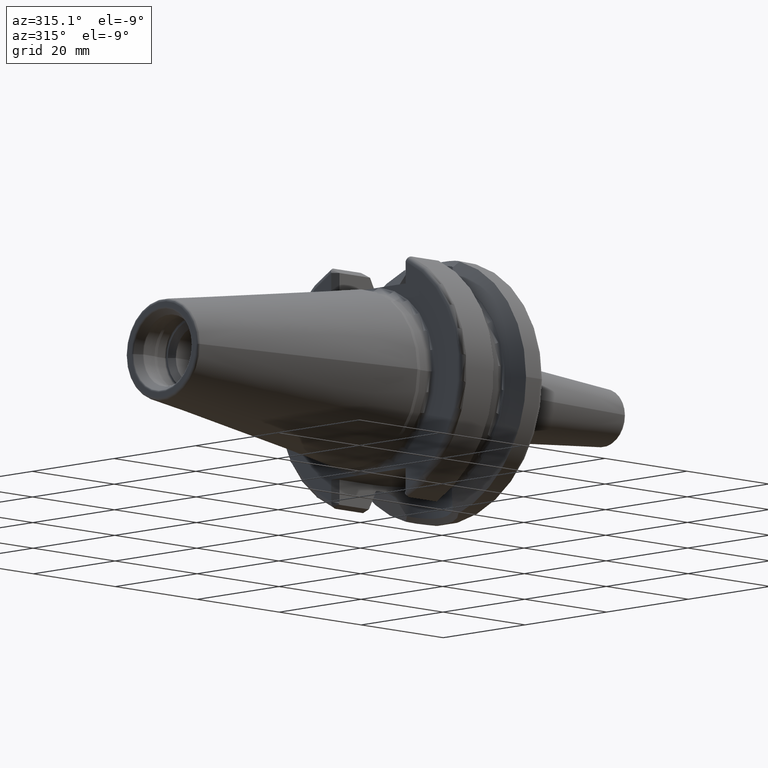
[diagram: clean part render]
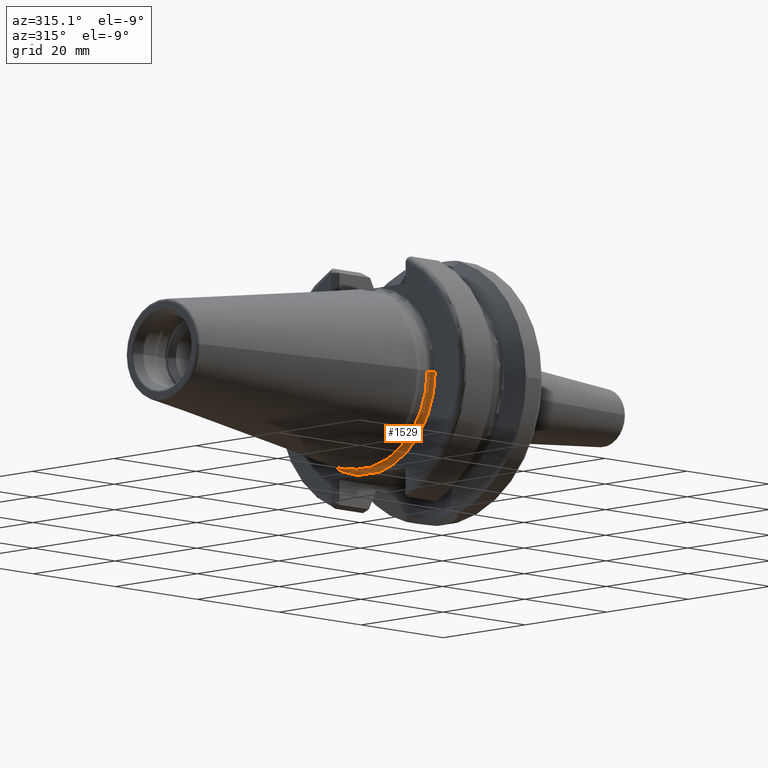
[diagram: same view with one face highlighted and labeled with its STEP entity id]
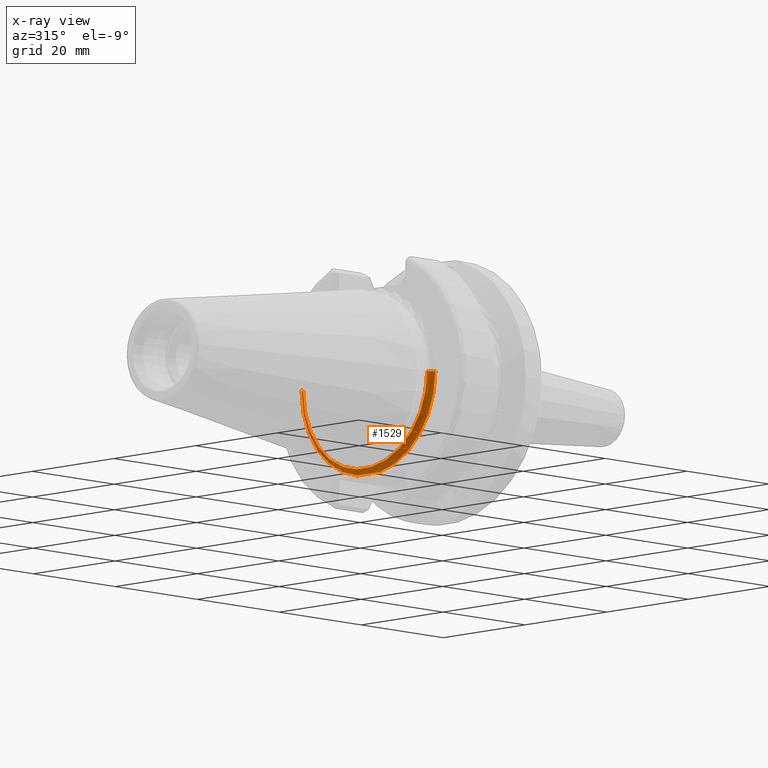
[diagram: x-ray of the same camera — body ghosted, the highlighted face saturated]
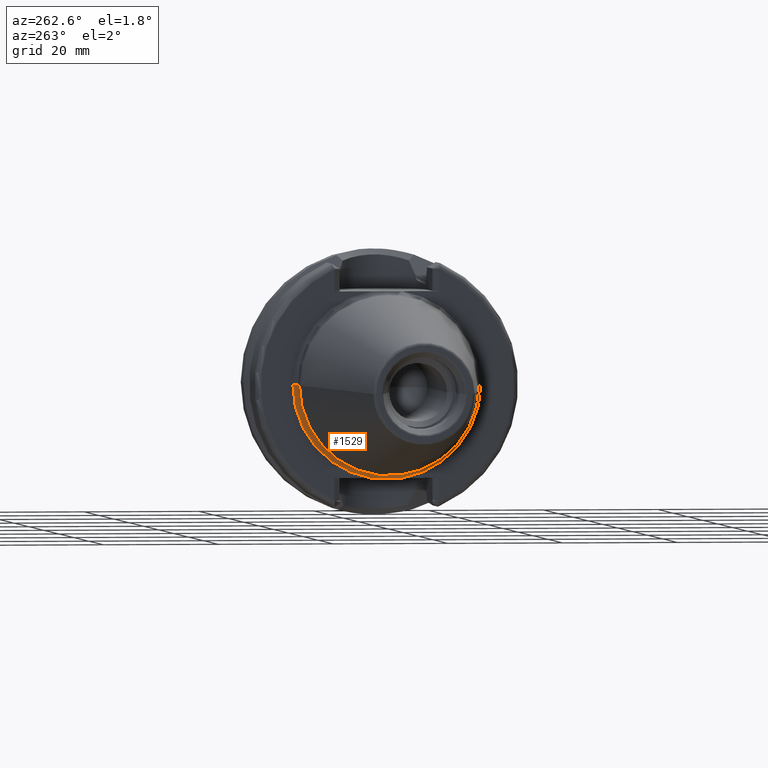
[diagram: same view with one face highlighted and labeled with its STEP entity id]
A machine part, auxiliary view. The second image highlights one B-rep face of the part: STEP entity #1529.
The next image is the same camera in x-ray: the body ghosted, the highlighted face saturated — about 12% of this face is hidden behind the body in this view.
A second angle (auxiliary view) of the same face is appended — the face is thin or edge-on in the first view.
In plain terms, the highlighted toroidal blend (fillet) surface has major radius 16.375 mm and minor (blend) radius 1 mm.
Its self-contained STEP definition (entity closure, byte-faithful):
#91=CARTESIAN_POINT('',(1.E0,0.E0,0.E0));
#92=DIRECTION('',(-1.E0,0.E0,0.E0));
#93=DIRECTION('',(0.E0,1.E0,0.E0));
#94=AXIS2_PLACEMENT_3D('',#91,#92,#93);
#96=CARTESIAN_POINT('',(2.E0,0.E0,0.E0));
#97=DIRECTION('',(-1.E0,0.E0,0.E0));
#98=DIRECTION('',(0.E0,1.E0,0.E0));
#99=AXIS2_PLACEMENT_3D('',#96,#97,#98);
#101=CARTESIAN_POINT('',(1.E0,1.6375E1,0.E0));
#102=DIRECTION('',(0.E0,0.E0,-1.E0));
#103=DIRECTION('',(1.E0,0.E0,0.E0));
#104=AXIS2_PLACEMENT_3D('',#101,#102,#103);
#106=CARTESIAN_POINT('',(1.E0,-1.6375E1,0.E0));
#107=DIRECTION('',(0.E0,0.E0,1.E0));
#108=DIRECTION('',(1.E0,0.E0,0.E0));
#109=AXIS2_PLACEMENT_3D('',#106,#107,#108);
#111=CARTESIAN_POINT('',(2.E0,0.E0,0.E0));
#112=DIRECTION('',(-1.E0,0.E0,0.E0));
#113=DIRECTION('',(0.E0,-1.652032561545E-1,-9.862595419847E-1));
#114=AXIS2_PLACEMENT_3D('',#111,#112,#113);
#116=CARTESIAN_POINT('',(2.E0,2.705203319531E0,-1.615E1));
#117=CARTESIAN_POINT('',(2.E0,2.447526606662E0,-1.615E1));
#118=CARTESIAN_POINT('',(1.994666808081E0,1.932209003313E0,-1.615E1));
#119=CARTESIAN_POINT('',(1.982373677754E0,1.159353659255E0,-1.615E1));
#120=CARTESIAN_POINT('',(1.974023153497E0,3.864772815515E-1,-1.615E1));
#121=CARTESIAN_POINT('',(1.974022947075E0,-3.864455621442E-1,-1.615E1));
#122=CARTESIAN_POINT('',(1.982373315248E0,-1.159330607093E0,-1.615E1));
#123=CARTESIAN_POINT('',(1.994666672291E0,-1.932198796155E0,-1.615E1));
#124=CARTESIAN_POINT('',(2.E0,-2.447523240675E0,-1.615E1));
#125=CARTESIAN_POINT('',(2.E0,-2.705203319531E0,-1.615E1));
#1210=CARTESIAN_POINT('',(2.E0,1.6375E1,0.E0));
#1211=CARTESIAN_POINT('',(1.E0,1.5375E1,0.E0));
#1212=VERTEX_POINT('',#1210);
#1213=VERTEX_POINT('',#1211);
#1216=CARTESIAN_POINT('',(2.E0,-1.6375E1,0.E0));
#1217=CARTESIAN_POINT('',(1.E0,-1.5375E1,0.E0));
#1218=VERTEX_POINT('',#1216);
#1219=VERTEX_POINT('',#1217);
#1288=CARTESIAN_POINT('',(2.E0,2.705203319531E0,-1.615E1));
#1289=VERTEX_POINT('',#1288);
#1290=CARTESIAN_POINT('',(2.E0,-2.705203319531E0,-1.615E1));
#1291=VERTEX_POINT('',#1290);
#1511=CARTESIAN_POINT('',(1.E0,0.E0,0.E0));
#1512=DIRECTION('',(1.E0,0.E0,0.E0));
#1513=DIRECTION('',(0.E0,-1.E0,0.E0));
#1514=AXIS2_PLACEMENT_3D('',#1511,#1512,#1513);
#1515=TOROIDAL_SURFACE('',#1514,1.6375E1,1.E0);
#1517=ORIENTED_EDGE('',*,*,#1516,.F.);
#1519=ORIENTED_EDGE('',*,*,#1518,.T.);
#1520=ORIENTED_EDGE('',*,*,#1506,.T.);
#1522=ORIENTED_EDGE('',*,*,#1521,.F.);
#1524=ORIENTED_EDGE('',*,*,#1523,.F.);
#1526=ORIENTED_EDGE('',*,*,#1525,.F.);
#1527=EDGE_LOOP('',(#1517,#1519,#1520,#1522,#1524,#1526));
#1528=FACE_OUTER_BOUND('',#1527,.F.);
#1529=ADVANCED_FACE('',(#1528),#1515,.F.);
#95=CIRCLE('',#94,1.5375E1);
#100=CIRCLE('',#99,1.6375E1);
#105=CIRCLE('',#104,1.E0);
#110=CIRCLE('',#109,1.E0);
#115=CIRCLE('',#114,1.6375E1);
#126=B_SPLINE_CURVE_WITH_KNOTS('',3,(#116,#117,#118,#119,#120,#121,#122,#123,
#124,#125),.UNSPECIFIED.,.F.,.F.,(4,1,1,1,1,1,1,4),(0.E0,1.428571428571E-1,
2.857142857143E-1,4.285714285714E-1,5.714285714286E-1,7.142857142857E-1,
8.571428571429E-1,1.E0),.UNSPECIFIED.);
#1506=EDGE_CURVE('',#1213,#1219,#95,.T.);
#1516=EDGE_CURVE('',#1212,#1289,#100,.T.);
#1518=EDGE_CURVE('',#1212,#1213,#105,.T.);
#1521=EDGE_CURVE('',#1218,#1219,#110,.T.);
#1523=EDGE_CURVE('',#1291,#1218,#115,.T.);
#1525=EDGE_CURVE('',#1289,#1291,#126,.T.);